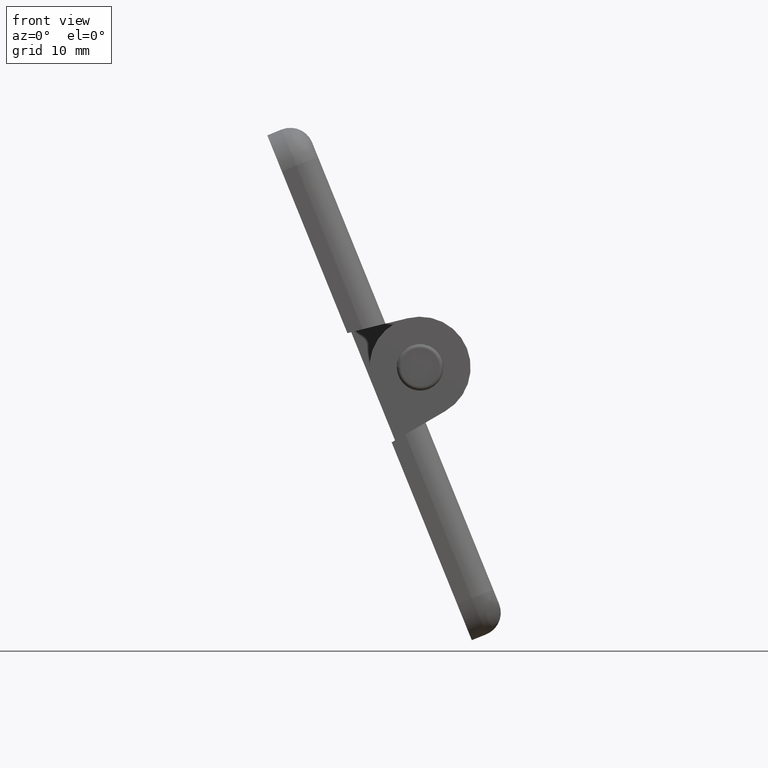
[diagram: clean part render]
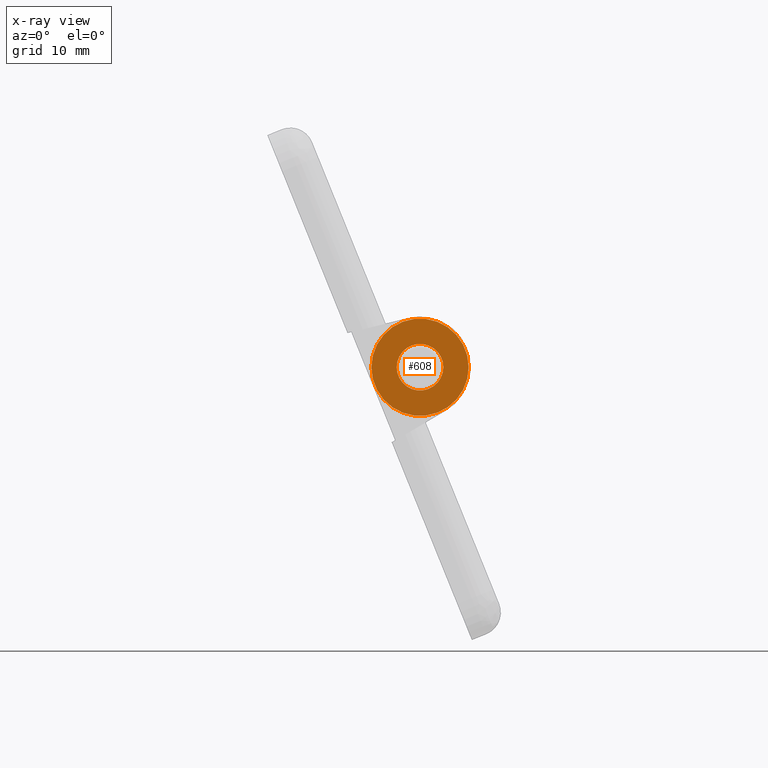
[diagram: x-ray — body ghosted, one internal face saturated and labeled with its STEP entity id]
A machine part, front view, then the same camera in x-ray: the body is ghosted and one INTERNAL B-rep face — a face not visible from any outside direction — is saturated and labeled: STEP entity #608.
In plain terms, the highlighted planar face has unit normal (0, 1, 0).
Its self-contained STEP definition (entity closure, byte-faithful):
#65=PLANE('',#683);
#178=FACE_BOUND('',#273,.T.);
#215=FACE_OUTER_BOUND('',#272,.T.);
#272=EDGE_LOOP('',(#568));
#273=EDGE_LOOP('',(#569));
#303=CIRCLE('',#678,3.);
#305=CIRCLE('',#681,6.25);
#354=VERTEX_POINT('',#1055);
#356=VERTEX_POINT('',#1060);
#425=EDGE_CURVE('',#354,#354,#303,.T.);
#427=EDGE_CURVE('',#356,#356,#305,.T.);
#568=ORIENTED_EDGE('',*,*,#427,.T.);
#569=ORIENTED_EDGE('',*,*,#425,.T.);
#608=ADVANCED_FACE('',(#215,#178),#65,.F.);
#678=AXIS2_PLACEMENT_3D('',#1056,#860,#861);
#681=AXIS2_PLACEMENT_3D('',#1061,#866,#867);
#683=AXIS2_PLACEMENT_3D('',#1063,#870,#871);
#860=DIRECTION('center_axis',(0.,1.,0.));
#861=DIRECTION('ref_axis',(1.,0.,0.));
#866=DIRECTION('center_axis',(0.,-1.,0.));
#867=DIRECTION('ref_axis',(1.,0.,0.));
#870=DIRECTION('center_axis',(0.,1.,0.));
#871=DIRECTION('ref_axis',(0.,0.,1.));
#1055=CARTESIAN_POINT('',(-3.,0.,3.67394039744206E-16));
#1056=CARTESIAN_POINT('Origin',(0.,0.,0.));
#1060=CARTESIAN_POINT('',(-6.25,0.,7.65404249467096E-16));
#1061=CARTESIAN_POINT('Origin',(0.,0.,0.));
#1063=CARTESIAN_POINT('Origin',(3.59843160688966E-16,0.,-1.48029736616688E-16));